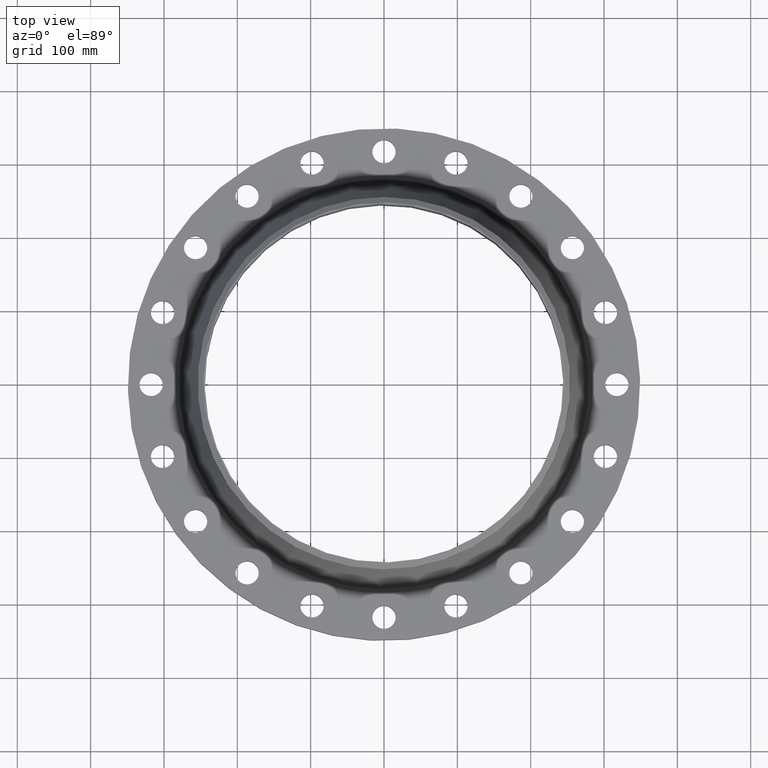
[diagram: clean part render]
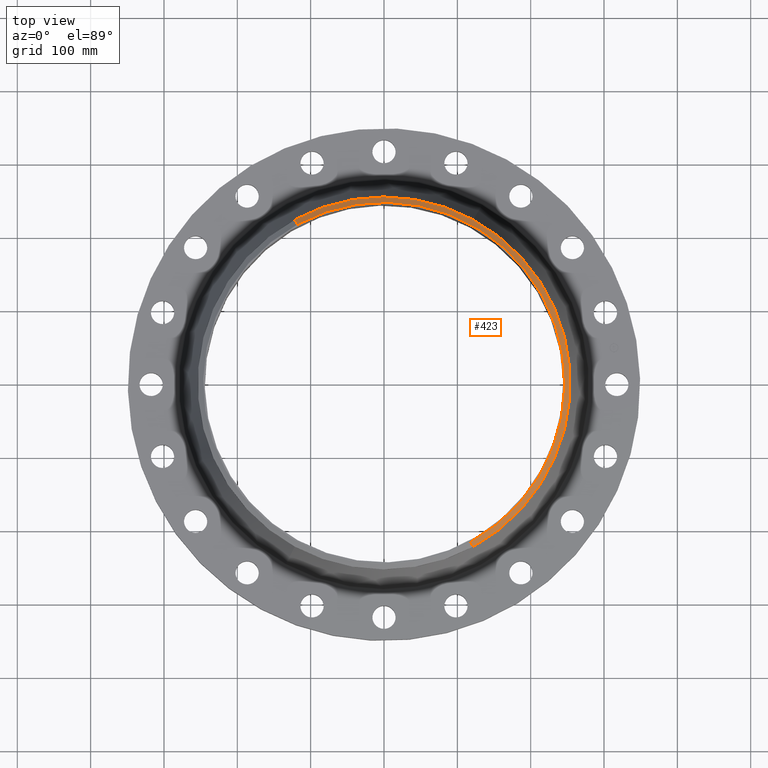
[diagram: same view with one face highlighted and labeled with its STEP entity id]
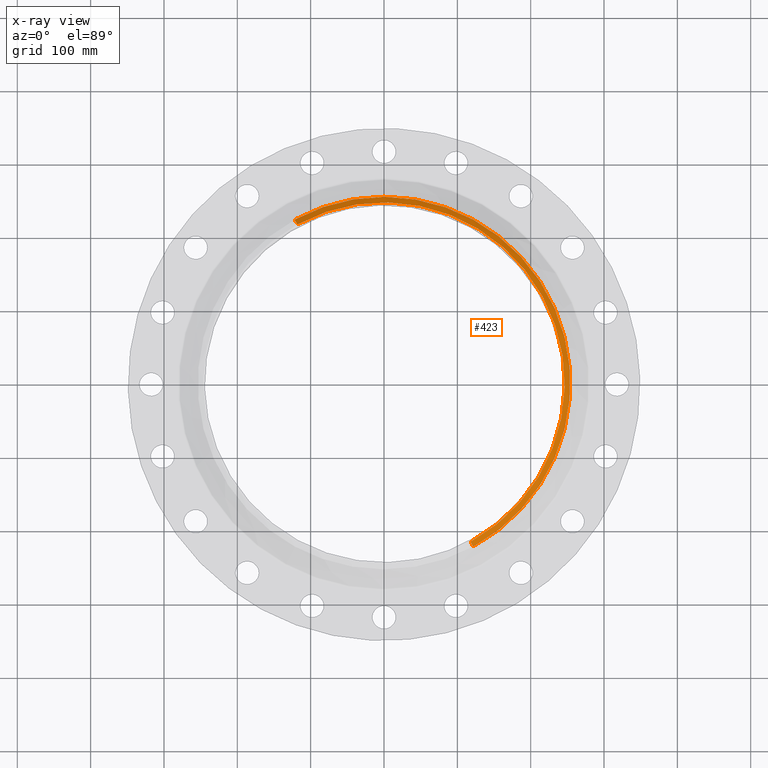
[diagram: x-ray of the same camera — body ghosted, the highlighted face saturated]
A machine part, top view. The second image highlights one B-rep face of the part: STEP entity #423.
The next image is the same camera in x-ray: the body ghosted, the highlighted face saturated — about 0% of this face is hidden behind the body in this view.
In plain terms, the highlighted conical surface has half-angle 52.5 deg.
Its self-contained STEP definition (entity closure, byte-faithful):
#270=AXIS2_PLACEMENT_3D('Circle Axis2P3D',#268,#269,$) ;
#297=AXIS2_PLACEMENT_3D('Circle Axis2P3D',#295,#296,$) ;
#311=AXIS2_PLACEMENT_3D('Cone Axis2P3D',#308,#309,#310) ;
#404=AXIS2_PLACEMENT_3D('Circle Axis2P3D',#402,#403,$) ;
#265=CARTESIAN_POINT('Vertex',(4.79425538606,8.77582561894,5.3926718274)) ;
#268=CARTESIAN_POINT('Axis2P3D Location',(0.,0.,5.3926718274)) ;
#272=CARTESIAN_POINT('Vertex',(4.79425538606,-8.77582561894,5.3926718274)) ;
#292=CARTESIAN_POINT('Vertex',(-4.79425538606,8.77582561894,5.3926718274)) ;
#295=CARTESIAN_POINT('Axis2P3D Location',(0.,0.,5.3926718274)) ;
#308=CARTESIAN_POINT('Axis2P3D Location',(0.,0.,5.62000000002)) ;
#313=CARTESIAN_POINT('Line Origine',(4.72323811878,-8.64582938315,5.50633591371)) ;
#317=CARTESIAN_POINT('Vertex',(4.65222085149,-8.51583314735,5.62000000002)) ;
#324=CARTESIAN_POINT('Vertex',(-4.65222085149,8.51583314735,5.62000000002)) ;
#327=CARTESIAN_POINT('Line Origine',(-4.72323811878,8.64582938315,5.50633591371)) ;
#402=CARTESIAN_POINT('Axis2P3D Location',(0.,0.,5.62000000002)) ;
#269=DIRECTION('Axis2P3D Direction',(0.,0.,-0.0393700787402)) ;
#296=DIRECTION('Axis2P3D Direction',(0.,0.,-0.0393700787402)) ;
#309=DIRECTION('Axis2P3D Direction',(-0.,-0.,-0.0393700787402)) ;
#310=DIRECTION('Axis2P3D XDirection',(-0.0188750212049,0.0345504945626,0.)) ;
#314=DIRECTION('Vector Direction',(0.014974561121,-0.02741075027,-0.023966985394)) ;
#328=DIRECTION('Vector Direction',(-0.014974561121,0.02741075027,-0.023966985394)) ;
#403=DIRECTION('Axis2P3D Direction',(0.,0.,-0.0393700787402)) ;
#315=VECTOR('Line Direction',#314,0.0393700787402) ;
#329=VECTOR('Line Direction',#328,0.0393700787402) ;
#417=ORIENTED_EDGE('',*,*,#331,.F.) ;
#418=ORIENTED_EDGE('',*,*,#406,.F.) ;
#419=ORIENTED_EDGE('',*,*,#319,.T.) ;
#420=ORIENTED_EDGE('',*,*,#274,.T.) ;
#421=ORIENTED_EDGE('',*,*,#299,.F.) ;
#423=ADVANCED_FACE('PartBody',(#422),#312,.T.) ;
#271=CIRCLE('generated circle',#270,10.) ;
#298=CIRCLE('generated circle',#297,10.) ;
#405=CIRCLE('generated circle',#404,9.70374015752) ;
#312=CONICAL_SURFACE('Cone',#311,9.70374015752,0.916297857297) ;
#274=EDGE_CURVE('',#273,#266,#271,.F.) ;
#299=EDGE_CURVE('',#293,#266,#298,.T.) ;
#319=EDGE_CURVE('',#318,#273,#316,.T.) ;
#331=EDGE_CURVE('',#325,#293,#330,.T.) ;
#406=EDGE_CURVE('',#318,#325,#405,.F.) ;
#416=EDGE_LOOP('',(#417,#418,#419,#420,#421)) ;
#422=FACE_OUTER_BOUND('',#416,.T.) ;
#316=LINE('Line',#313,#315) ;
#330=LINE('Line',#327,#329) ;
#266=VERTEX_POINT('',#265) ;
#273=VERTEX_POINT('',#272) ;
#293=VERTEX_POINT('',#292) ;
#318=VERTEX_POINT('',#317) ;
#325=VERTEX_POINT('',#324) ;